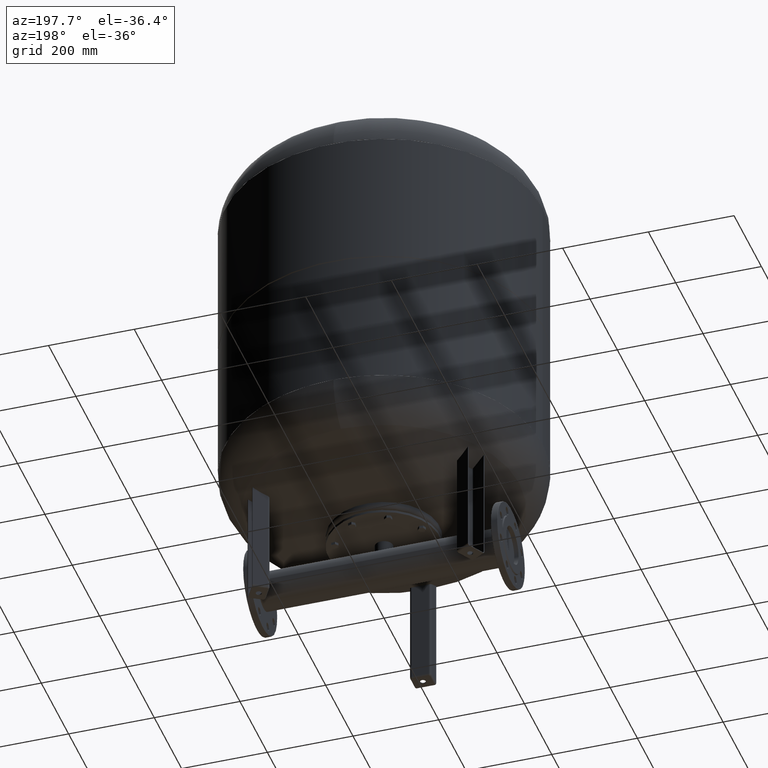
[diagram: clean part render]
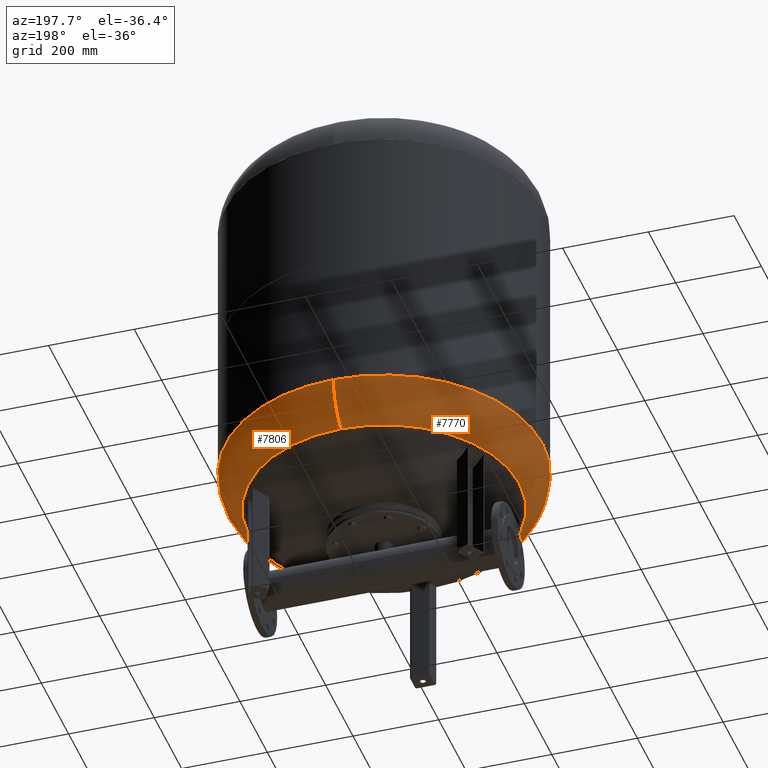
[diagram: same view with one multi-face feature highlighted, each face labeled with its STEP entity id]
A machine part, auxiliary view. The highlighted faces form ONE feature: a constant-radius fillet chain: 2 tangent blend faces with common blend radius 115.5 mm. The faces share edges in the B-rep.
Their STEP definitions:
[1] entity #7770 (Torus):
#7675=CARTESIAN_POINT('',(-370.0,-3.468087E-014,374.793879611869560));
#7676=VERTEX_POINT('',#7675);
#7700=CARTESIAN_POINT('',(-4.531044E-014,369.999999999999940,374.793879611869610));
#7701=VERTEX_POINT('',#7700);
#7709=CARTESIAN_POINT('',(0.0,-3.468087E-014,374.793879611869560));
#7710=DIRECTION('',(0.0,0.0,1.0));
#7711=DIRECTION('',(-1.0,0.0,0.0));
#7712=AXIS2_PLACEMENT_3D('',#7709,#7710,#7711);
#7713=CIRCLE('',#7712,370.0);
#7714=EDGE_CURVE('',#7701,#7676,#7713,.T.);
#7719=CARTESIAN_POINT('',(0.0,-3.468087E-014,374.793879611869560));
#7720=DIRECTION('',(0.0,-1.836970E-016,1.0));
#7721=DIRECTION('',(0.0,-1.0,0.0));
#7722=AXIS2_PLACEMENT_3D('',#7719,#7720,#7721);
#7723=TOROIDAL_SURFACE('',#7722,254.500000000000030,115.500000000000000);
#7724=CARTESIAN_POINT('',(0.0,-370.000000000000060,374.793879611869500));
#7725=VERTEX_POINT('',#7724);
#7726=CARTESIAN_POINT('',(0.0,-315.931034482758610,276.985505725079410));
#7727=VERTEX_POINT('',#7726);
#7728=CARTESIAN_POINT('',(0.0,-254.500000000000060,374.793879611869500));
#7729=DIRECTION('',(1.0,0.0,0.0));
#7730=DIRECTION('',(0.0,-1.0,0.0));
#7731=AXIS2_PLACEMENT_3D('',#7728,#7729,#7730);
#7732=CIRCLE('',#7731,115.500000000000000);
#7733=EDGE_CURVE('',#7725,#7727,#7732,.T.);
#7734=ORIENTED_EDGE('',*,*,#7733,.F.);
#7735=CARTESIAN_POINT('',(0.0,-3.468087E-014,374.793879611869560));
#7736=DIRECTION('',(0.0,0.0,1.0));
#7737=DIRECTION('',(-1.0,0.0,0.0));
#7738=AXIS2_PLACEMENT_3D('',#7735,#7736,#7737);
#7739=CIRCLE('',#7738,370.0);
#7740=EDGE_CURVE('',#7676,#7725,#7739,.T.);
#7741=ORIENTED_EDGE('',*,*,#7740,.F.);
#7742=ORIENTED_EDGE('',*,*,#7714,.F.);
#7743=CARTESIAN_POINT('',(-3.868912E-014,315.931034482758610,276.985505725079630));
#7744=VERTEX_POINT('',#7743);
#7745=CARTESIAN_POINT('',(-3.116623E-014,254.500000000000000,374.793879611869610));
#7746=DIRECTION('',(-1.0,0.0,0.0));
#7747=DIRECTION('',(0.0,1.0,0.0));
#7748=AXIS2_PLACEMENT_3D('',#7745,#7746,#7747);
#7749=CIRCLE('',#7748,115.500000000000000);
#7750=EDGE_CURVE('',#7701,#7744,#7749,.T.);
#7751=ORIENTED_EDGE('',*,*,#7750,.T.);
#7752=CARTESIAN_POINT('',(-315.931034482758610,-1.671377E-014,276.985505725079520));
#7753=VERTEX_POINT('',#7752);
#7754=CARTESIAN_POINT('',(0.0,-1.671377E-014,276.985505725079520));
#7755=DIRECTION('',(0.0,0.0,1.0));
#7756=DIRECTION('',(-1.0,0.0,0.0));
#7757=AXIS2_PLACEMENT_3D('',#7754,#7755,#7756);
#7758=CIRCLE('',#7757,315.931034482758610);
#7759=EDGE_CURVE('',#7744,#7753,#7758,.T.);
#7760=ORIENTED_EDGE('',*,*,#7759,.T.);
#7761=CARTESIAN_POINT('',(0.0,-1.671377E-014,276.985505725079520));
#7762=DIRECTION('',(0.0,0.0,1.0));
#7763=DIRECTION('',(-1.0,0.0,0.0));
#7764=AXIS2_PLACEMENT_3D('',#7761,#7762,#7763);
#7765=CIRCLE('',#7764,315.931034482758610);
#7766=EDGE_CURVE('',#7753,#7727,#7765,.T.);
#7767=ORIENTED_EDGE('',*,*,#7766,.T.);
#7768=EDGE_LOOP('',(#7734,#7741,#7742,#7751,#7760,#7767));
#7769=FACE_OUTER_BOUND('',#7768,.T.);
#7770=ADVANCED_FACE('',(#7769),#7723,.T.);
[2] entity #7806 (Torus):
#7692=CARTESIAN_POINT('',(370.0,1.062956E-014,374.793879611869560));
#7693=VERTEX_POINT('',#7692);
#7700=CARTESIAN_POINT('',(-4.531044E-014,369.999999999999940,374.793879611869610));
#7701=VERTEX_POINT('',#7700);
#7702=CARTESIAN_POINT('',(0.0,-3.468087E-014,374.793879611869560));
#7703=DIRECTION('',(0.0,0.0,1.0));
#7704=DIRECTION('',(-1.0,0.0,0.0));
#7705=AXIS2_PLACEMENT_3D('',#7702,#7703,#7704);
#7706=CIRCLE('',#7705,370.0);
#7707=EDGE_CURVE('',#7693,#7701,#7706,.T.);
#7724=CARTESIAN_POINT('',(0.0,-370.000000000000060,374.793879611869500));
#7725=VERTEX_POINT('',#7724);
#7726=CARTESIAN_POINT('',(0.0,-315.931034482758610,276.985505725079410));
#7727=VERTEX_POINT('',#7726);
#7728=CARTESIAN_POINT('',(0.0,-254.500000000000060,374.793879611869500));
#7729=DIRECTION('',(1.0,0.0,0.0));
#7730=DIRECTION('',(0.0,-1.0,0.0));
#7731=AXIS2_PLACEMENT_3D('',#7728,#7729,#7730);
#7732=CIRCLE('',#7731,115.500000000000000);
#7733=EDGE_CURVE('',#7725,#7727,#7732,.T.);
#7743=CARTESIAN_POINT('',(-3.868912E-014,315.931034482758610,276.985505725079630));
#7744=VERTEX_POINT('',#7743);
#7745=CARTESIAN_POINT('',(-3.116623E-014,254.500000000000000,374.793879611869610));
#7746=DIRECTION('',(-1.0,0.0,0.0));
#7747=DIRECTION('',(0.0,1.0,0.0));
#7748=AXIS2_PLACEMENT_3D('',#7745,#7746,#7747);
#7749=CIRCLE('',#7748,115.500000000000000);
#7750=EDGE_CURVE('',#7701,#7744,#7749,.T.);
#7778=CARTESIAN_POINT('',(0.0,-1.671377E-014,276.985505725079520));
#7779=DIRECTION('',(0.0,0.0,1.0));
#7780=DIRECTION('',(-1.0,0.0,0.0));
#7781=AXIS2_PLACEMENT_3D('',#7778,#7779,#7780);
#7782=CIRCLE('',#7781,315.931034482758610);
#7783=EDGE_CURVE('',#7727,#7744,#7782,.T.);
#7788=CARTESIAN_POINT('',(0.0,-3.468087E-014,374.793879611869560));
#7789=DIRECTION('',(0.0,-1.836970E-016,1.0));
#7790=DIRECTION('',(0.0,-1.0,0.0));
#7791=AXIS2_PLACEMENT_3D('',#7788,#7789,#7790);
#7792=TOROIDAL_SURFACE('',#7791,254.500000000000030,115.500000000000000);
#7793=ORIENTED_EDGE('',*,*,#7733,.T.);
#7794=ORIENTED_EDGE('',*,*,#7783,.T.);
#7795=ORIENTED_EDGE('',*,*,#7750,.F.);
#7796=ORIENTED_EDGE('',*,*,#7707,.F.);
#7797=CARTESIAN_POINT('',(0.0,-3.468087E-014,374.793879611869560));
#7798=DIRECTION('',(0.0,0.0,1.0));
#7799=DIRECTION('',(-1.0,0.0,0.0));
#7800=AXIS2_PLACEMENT_3D('',#7797,#7798,#7799);
#7801=CIRCLE('',#7800,370.0);
#7802=EDGE_CURVE('',#7725,#7693,#7801,.T.);
#7803=ORIENTED_EDGE('',*,*,#7802,.F.);
#7804=EDGE_LOOP('',(#7793,#7794,#7795,#7796,#7803));
#7805=FACE_OUTER_BOUND('',#7804,.T.);
#7806=ADVANCED_FACE('',(#7805),#7792,.T.);